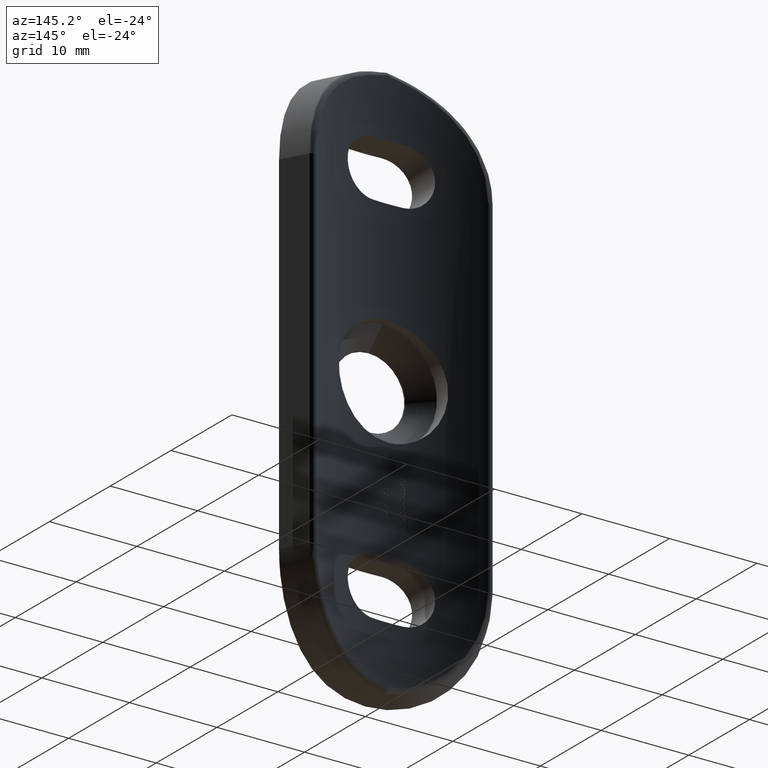
[diagram: clean part render]
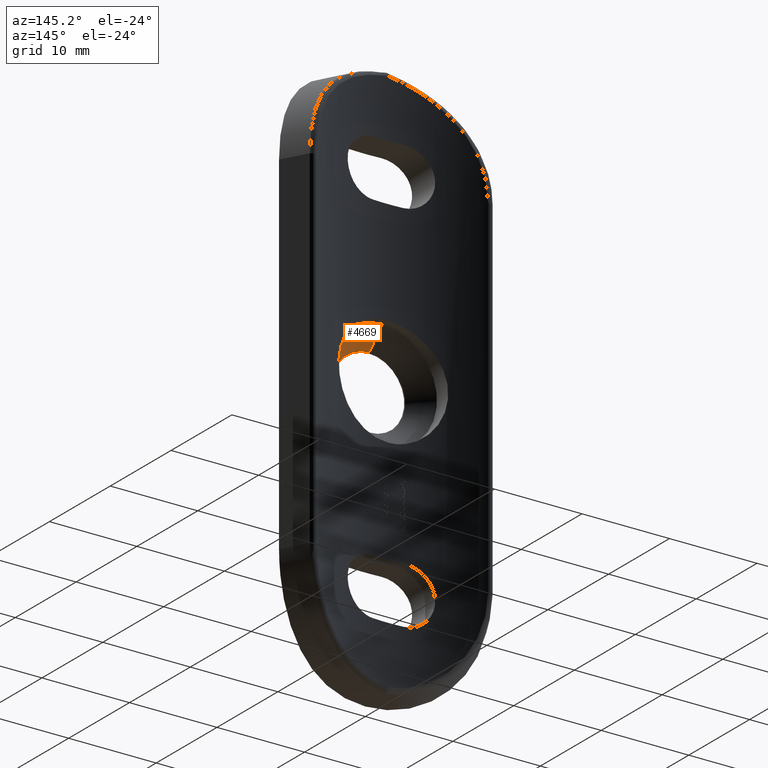
[diagram: same view with one face highlighted and labeled with its STEP entity id]
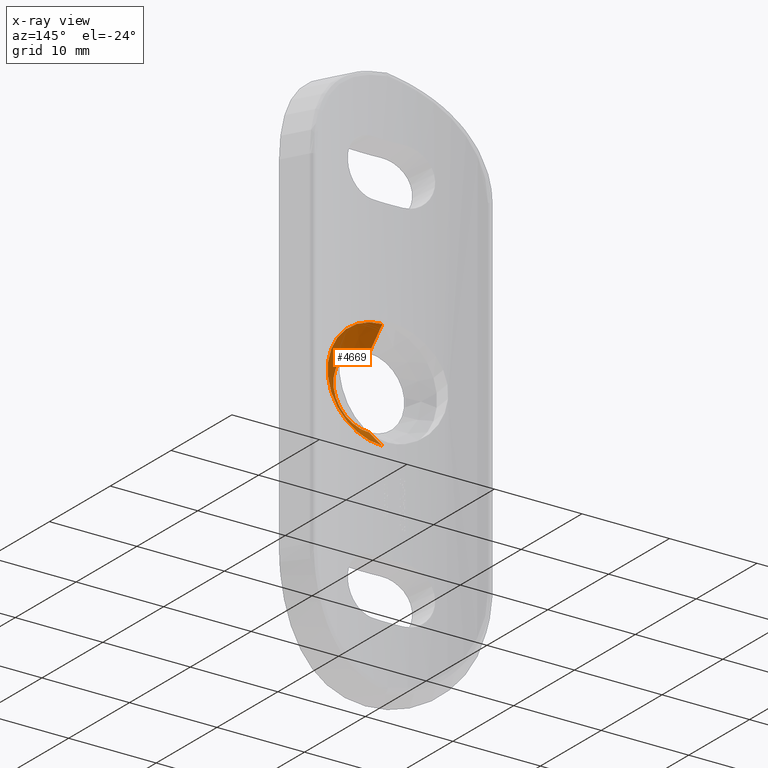
[diagram: x-ray of the same camera — body ghosted, the highlighted face saturated]
A machine part, auxiliary view. The second image highlights one B-rep face of the part: STEP entity #4669.
The next image is the same camera in x-ray: the body ghosted, the highlighted face saturated — about 0% of this face is hidden behind the body in this view.
In plain terms, the highlighted conical surface has half-angle 45 deg.
Its self-contained STEP definition (entity closure, byte-faithful):
#47 = AXIS2_PLACEMENT_3D ( 'NONE', #15451, #13125, #13174 ) ;
#542 = CARTESIAN_POINT ( 'NONE',  ( 0.0000000000000000000, 0.6499999999999734900, 4.099999999999999600 ) ) ;
#1134 = CIRCLE ( 'NONE', #47, 6.250000000000001800 ) ;
#1226 = ORIENTED_EDGE ( 'NONE', *, *, #1436, .T. ) ;
#1436 = EDGE_CURVE ( 'NONE', #11031, #2854, #11591, .T. ) ;
#1552 = AXIS2_PLACEMENT_3D ( 'NONE', #9913, #14860, #1635 ) ;
#1635 = DIRECTION ( 'NONE',  ( 0.0000000000000000000, 0.0000000000000000000, 1.000000000000000000 ) ) ;
#1817 = DIRECTION ( 'NONE',  ( 8.659560562354884800E-017, 0.7071067811865515700, -0.7071067811865435800 ) ) ;
#2854 = VERTEX_POINT ( 'NONE', #542 ) ;
#2868 = FACE_OUTER_BOUND ( 'NONE', #4052, .T. ) ;
#4052 = EDGE_LOOP ( 'NONE', ( #6070, #1226, #9846, #12342 ) ) ;
#4669 = ADVANCED_FACE ( 'NONE', ( #2868 ), #13219, .F. ) ;
#4680 = CARTESIAN_POINT ( 'NONE',  ( 6.337547185587553000E-016, 0.6499999999999734900, -4.099999999999999600 ) ) ;
#4916 = VECTOR ( 'NONE', #1817, 999.9999999999998900 ) ;
#6070 = ORIENTED_EDGE ( 'NONE', *, *, #7475, .F. ) ;
#7156 = VERTEX_POINT ( 'NONE', #9266 ) ;
#7337 = EDGE_CURVE ( 'NONE', #7156, #8694, #1134, .T. ) ;
#7363 = EDGE_CURVE ( 'NONE', #2854, #8694, #8332, .T. ) ;
#7389 = DIRECTION ( 'NONE',  ( 0.0000000000000000000, 0.0000000000000000000, -1.000000000000000000 ) ) ;
#7475 = EDGE_CURVE ( 'NONE', #11031, #7156, #9071, .T. ) ;
#7699 = CARTESIAN_POINT ( 'NONE',  ( 5.021051876504147400E-016, 0.6499999999999734900, -4.099999999999999600 ) ) ;
#8332 = LINE ( 'NONE', #10884, #12633 ) ;
#8541 = DIRECTION ( 'NONE',  ( -0.0000000000000000000, -1.000000000000000000, -0.0000000000000000000 ) ) ;
#8694 = VERTEX_POINT ( 'NONE', #14645 ) ;
#9071 = LINE ( 'NONE', #7699, #4916 ) ;
#9266 = CARTESIAN_POINT ( 'NONE',  ( 0.0000000000000000000, 2.800000000000000300, -6.250000000000001800 ) ) ;
#9846 = ORIENTED_EDGE ( 'NONE', *, *, #7363, .T. ) ;
#9913 = CARTESIAN_POINT ( 'NONE',  ( 0.0000000000000000000, 0.6499999999999734900, 0.0000000000000000000 ) ) ;
#10884 = CARTESIAN_POINT ( 'NONE',  ( 0.0000000000000000000, 0.6499999999999734900, 4.099999999999999600 ) ) ;
#11031 = VERTEX_POINT ( 'NONE', #4680 ) ;
#11591 = CIRCLE ( 'NONE', #15260, 4.099999999999999600 ) ;
#12342 = ORIENTED_EDGE ( 'NONE', *, *, #7337, .F. ) ;
#12633 = VECTOR ( 'NONE', #14378, 999.9999999999998900 ) ;
#13125 = DIRECTION ( 'NONE',  ( -0.0000000000000000000, -1.000000000000000000, -0.0000000000000000000 ) ) ;
#13174 = DIRECTION ( 'NONE',  ( 0.0000000000000000000, 0.0000000000000000000, -1.000000000000000000 ) ) ;
#13219 = CONICAL_SURFACE ( 'NONE', #1552, 4.099999999999999600, 0.7853981633974426200 ) ;
#14378 = DIRECTION ( 'NONE',  ( 0.0000000000000000000, 0.7071067811865515700, 0.7071067811865435800 ) ) ;
#14483 = CARTESIAN_POINT ( 'NONE',  ( 0.0000000000000000000, 0.6499999999999734900, 0.0000000000000000000 ) ) ;
#14645 = CARTESIAN_POINT ( 'NONE',  ( 7.654042494670960600E-016, 2.800000000000000300, 6.250000000000002700 ) ) ;
#14860 = DIRECTION ( 'NONE',  ( 0.0000000000000000000, 1.000000000000000000, 0.0000000000000000000 ) ) ;
#15260 = AXIS2_PLACEMENT_3D ( 'NONE', #14483, #8541, #7389 ) ;
#15451 = CARTESIAN_POINT ( 'NONE',  ( 0.0000000000000000000, 2.800000000000000300, 0.0000000000000000000 ) ) ;